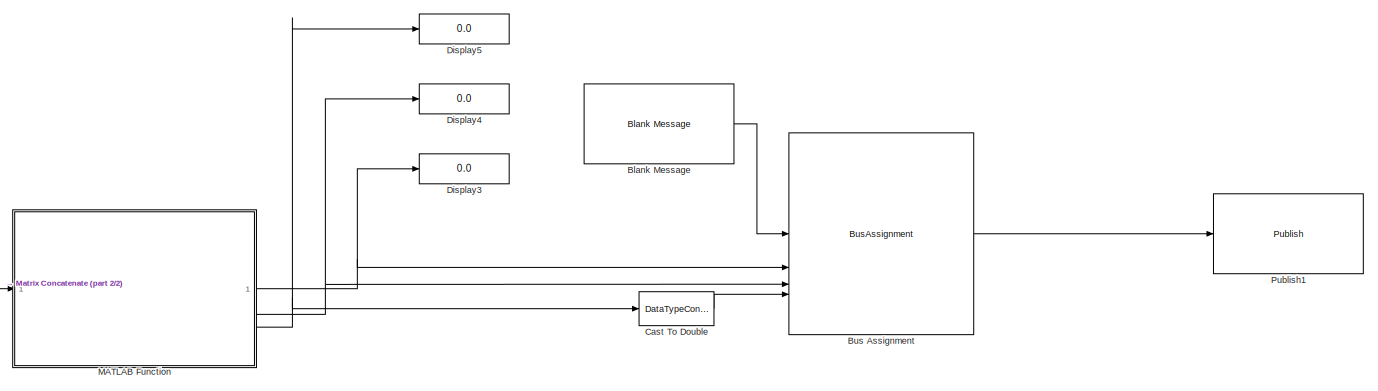
[diagram: root canvas - part 1/2, middle right region]
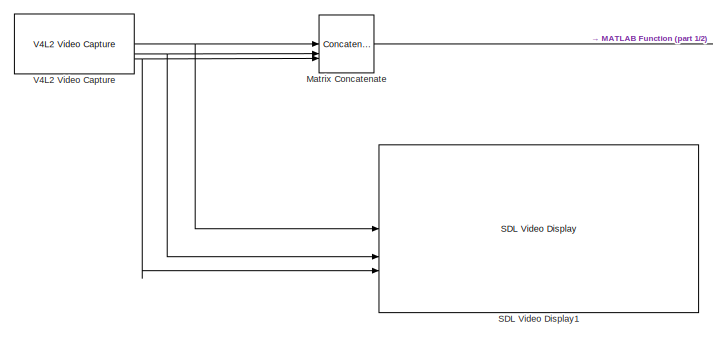
[diagram: root canvas - part 2/2, bottom left region]
MODEL slx_2119468ae896
KIND model
CONFIG AbsTol = auto
CONFIG EnableMultiTasking = on
CONFIG FixedStep = auto
CONFIG MaxStep = auto
CONFIG MinStep = auto
CONFIG RelTol = 1e-3
CONFIG SampleTimeConstraint = Unconstrained
CONFIG SolverName = FixedStepAuto
CONFIG StartTime = 0.0
CONFIG StopTime = inf
BLOCK [Reference] Blank Message  REF=robotlib/Blank Message
  SourceBlock = robotlib/Blank Message
  SourceType = ROS Blank Message
BLOCK [BusAssignment] Bus Assignment
  AssignedSignals = X,Y,Z
BLOCK [DataTypeConversion] Cast To Double
  OutDataTypeStr = double
  RndMeth = Floor
  SaturateOnIntegerOverflow = off
BLOCK [Display] Display3
  Decimation = 1
BLOCK [Display] Display4
  Decimation = 1
BLOCK [Display] Display5
  Decimation = 1
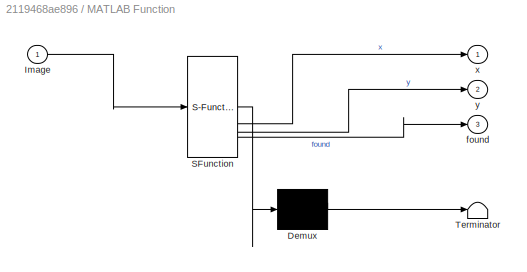
BLOCK [SubSystem] MATLAB Function
  ErrorFcn = Stateflow.Translate.translate
  PermitHierarchicalResolution = ExplicitOnly
  SFBlockType = MATLAB Function
  TreatAsAtomicUnit = on
BLOCK [Demux] MATLAB Function/ Demux 
  Outputs = 1
BLOCK [S-Function] MATLAB Function/ SFunction 
  EnableBusSupport = on
  FunctionName = sf_sfun
  PortCounts = [1 4]
  SFcnIsStateOwnerBlock = off
  SFunctionDeploymentMode = off
  Tag = Stateflow S-Function 2
BLOCK [Terminator] MATLAB Function/ Terminator 
BLOCK [Inport] MATLAB Function/Image
BLOCK [Outport] MATLAB Function/found
  Port = 3
BLOCK [Outport] MATLAB Function/x
BLOCK [Outport] MATLAB Function/y
  Port = 2
BLOCK [Concatenate] Matrix Concatenate
  ConcatenateDimension = 3
  Mode = Multidimensional array
  NumInputs = 3
BLOCK [Reference] Publish1  REF=robotlib/Publish
  SourceBlock = robotlib/Publish
  SourceType = ROS Publish
BLOCK [Reference] SDL Video Display1  REF=raspberrypiAVlib/SDL Video Display
  SourceBlock = raspberrypiAVlib/SDL Video Display
  SourceType = SDL Video Display
BLOCK [Reference] V4L2 Video Capture  REF=raspberrypiAVlib/V4L2 Video Capture
  SourceBlock = raspberrypiAVlib/V4L2 Video Capture
  SourceType = codertarget.raspi.internal.Raspiv4l2Capture
LINE Blank Message:1 -> Bus Assignment:1
LINE Bus Assignment:1 -> Publish1:1
LINE Cast To Double:1 -> Bus Assignment:4
NET MATLAB Function:1 -> Bus Assignment:2, Display3:1
NET MATLAB Function:2 -> Bus Assignment:3, Display4:1
NET MATLAB Function:3 -> Cast To Double:1, Display5:1
LINE Matrix Concatenate:1 -> MATLAB Function:1
NET V4L2 Video Capture:1 -> Matrix Concatenate:1, SDL Video Display1:1
NET V4L2 Video Capture:2 -> Matrix Concatenate:2, SDL Video Display1:2
NET V4L2 Video Capture:3 -> Matrix Concatenate:3, SDL Video Display1:3
note: NET lines group one-source signal fan-out (src -> all destinations, sorted); 1:1 wires keep LINE
CHART MATLAB Function states=1 transitions=1
  STATE_LABEL 'eML_blk_kernel()'
  STATE_LABEL 'SCRIPT:\nfunction [x,y,found] = Localize(Image)\n%outputImage=Image;\npersistent initialized focalLength principalPoint imageSize radialDistortion tangentialDistortion newres scaleX scaleY gotmap fishEye mapX mapY StoredX StoredY PinIntrinsics;\nx=0;\ny=0;\nfound=true;\nif((isempty(initialized)))\n    StoredX=0;\n    StoredY=0;\n    focalLength = [120, 120];\n    principalPoint = [160.5, 120.5];\n    imageSiz...<+1876ch>'
CHART  states=0 transitions=0
